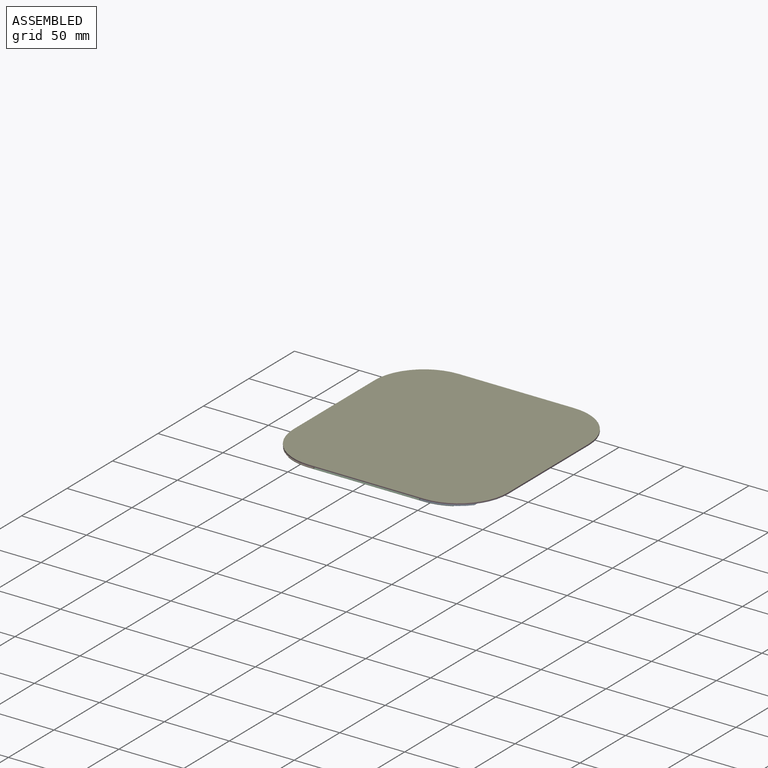
[diagram: assembled view]
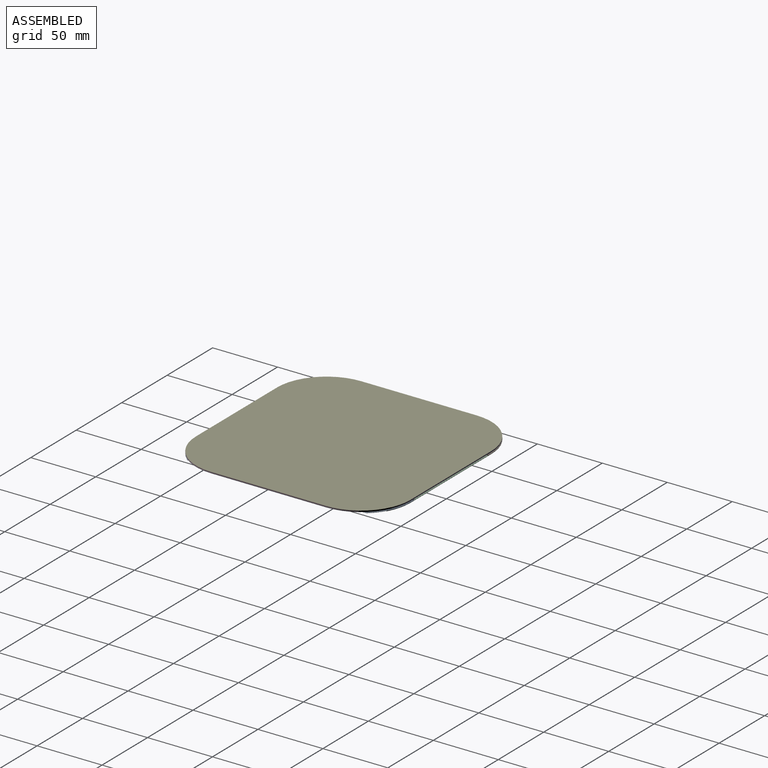
[diagram: assembled view, second angle]
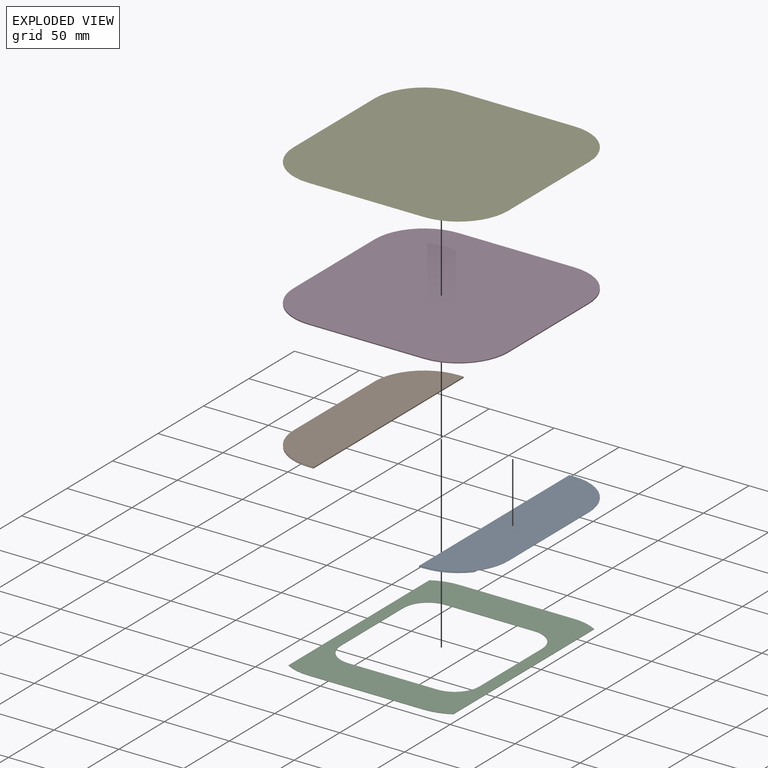
[diagram: exploded view]
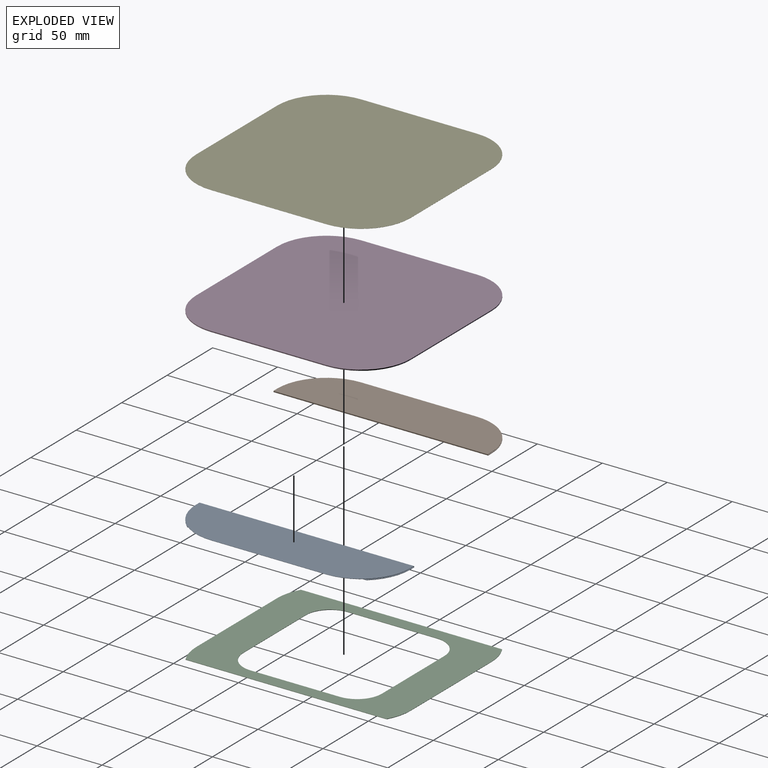
[diagram: exploded view, second angle]
ASSEMBLY  parts=5 mates=5
PART A: 16 faces, bbox 41.9x165.1x1 mm
  f0: plane 137.82x0.2mm, normal (-1,0,0), area 28mm2, adj f4,f5,f12,f13
  f1: plane 165.1x41.71mm, normal (0,0,1), area 6262.8mm2, adj f2,f9,f10,f11,f14,f15
  f2: plane 88.9x0.2mm, normal (-1,0,0), area 18.1mm2, adj f1,f3,f14,f15
  f3: plane 165.1x41.71mm, normal (0,0,-1), area 6262.8mm2, adj f2,f6,f9,f10,f14,f15
  f4: plane 165.1x32.82mm, normal (0,0,1), area 5175mm2, adj f0,f8,f9,f10,f12,f13
  f5: plane 165.1x32.82mm, normal (0,0,-1), area 5175mm2, adj f0,f9,f10,f11,f12,f13
  f6: cylinder r=0.2mm len=165.1mm, axis (0,1,0), area 52.7mm2, adj f3,f7,f9,f10
  f7: plane 165.1x0.61mm, normal (1,0,0), area 100.6mm2, adj f6,f8,f9,f10
  f8: cylinder r=0.2mm len=165.1mm, axis (0,1,0), area 52.7mm2, adj f4,f7,f9,f10
  f9: plane 3.81x1.02mm, normal (0,-1,0), area 1.7mm2, adj f1,f3,f4,f5,f6,f7,f8,f11
  f10: plane 3.81x1.02mm, normal (0,1,0), area 1.7mm2, adj f1,f3,f4,f5,f6,f7,f8,f11
  f11: plane 165.1x0.61mm, normal (-1,0,0), area 100.6mm2, adj f1,f5,f9,f10
  f12: cylinder r=38.1mm len=29.21mm, axis (0,0,1), area 6.8mm2, adj f0,f4,f5,f10
  f13: cylinder r=38.1mm len=29.21mm, axis (0,0,1), area 6.8mm2, adj f0,f4,f5,f9
  f14: cylinder r=38.1mm len=38.1mm, axis (0,0,1), area 12.2mm2, adj f1,f2,f3,f10
  f15: cylinder r=38.1mm len=38.1mm, axis (0,0,1), area 12.2mm2, adj f1,f2,f3,f9
PART B: same geometry as A
PART C: 18 faces, bbox 127x165.1x0.3 mm
  f0: plane 165.1x127mm, normal (0,0,1), area 9772.6mm2, adj f2,f3,f4,f5,f6,f7,f8,f9
  f1: plane 165.1x127mm, normal (0,0,-1), area 9772.6mm2, adj f2,f3,f4,f5,f6,f7,f8,f9
  f2: plane 88.9x0.25mm, normal (0,-1,0), area 22.6mm2, adj f0,f1,f7,f8
  f3: plane 154.89x0.25mm, normal (1,0,0), area 39.3mm2, adj f0,f1,f8,f9
  f4: plane 88.9x0.25mm, normal (0,1,0), area 22.6mm2, adj f0,f1,f6,f9
  f5: plane 154.89x0.25mm, normal (-1,0,0), area 39.3mm2, adj f0,f1,f6,f7
  f6: cylinder r=38.1mm len=19.05mm, axis (0,0,1), area 5.1mm2, adj f0,f1,f4,f5
  f7: cylinder r=38.1mm len=19.05mm, axis (0,0,1), area 5.1mm2, adj f0,f1,f2,f5
  f8: cylinder r=38.1mm len=19.05mm, axis (0,0,1), area 5.1mm2, adj f0,f1,f2,f3
  f9: cylinder r=38.1mm len=19.05mm, axis (0,0,1), area 5.1mm2, adj f0,f1,f3,f4
  f10: plane 68.58x0.25mm, normal (0,1,0), area 17.4mm2, adj f0,f1,f11,f17
  f11: cylinder r=19.05mm len=19.05mm, axis (0,0,1), area 7.6mm2, adj f0,f1,f10,f12
  f12: plane 68.58x0.25mm, normal (-1,0,0), area 17.4mm2, adj f0,f1,f11,f13
  f13: cylinder r=19.05mm len=19.05mm, axis (0,0,1), area 7.6mm2, adj f0,f1,f12,f14
  f14: plane 68.58x0.25mm, normal (0,-1,0), area 17.4mm2, adj f0,f1,f13,f15
  f15: cylinder r=19.05mm len=19.05mm, axis (0,0,1), area 7.6mm2, adj f0,f1,f14,f16
  f16: plane 68.58x0.25mm, normal (1,0,0), area 17.4mm2, adj f0,f1,f15,f17
  f17: cylinder r=19.05mm len=19.05mm, axis (0,0,1), area 7.6mm2, adj f0,f1,f10,f16
PART D: 10 faces, bbox 165.1x165.1x0.8 mm
  f0: plane 88.9x0.76mm, normal (1,0,0), area 67.7mm2, adj f1,f7,f8,f9
  f1: cylinder r=38.1mm len=38.1mm, axis (0,0,-1), area 45.6mm2, adj f0,f2,f8,f9
  f2: plane 88.9x0.76mm, normal (0,1,0), area 67.7mm2, adj f1,f3,f8,f9
  f3: cylinder r=38.1mm len=38.1mm, axis (0,0,-1), area 45.6mm2, adj f2,f4,f8,f9
  f4: plane 88.9x0.76mm, normal (-1,0,0), area 67.7mm2, adj f3,f5,f8,f9
  f5: cylinder r=38.1mm len=38.1mm, axis (0,0,-1), area 45.6mm2, adj f4,f6,f8,f9
  f6: plane 88.9x0.76mm, normal (0,-1,0), area 67.7mm2, adj f5,f7,f8,f9
  f7: cylinder r=38.1mm len=38.1mm, axis (0,0,-1), area 45.6mm2, adj f0,f6,f8,f9
  f8: plane 165.1x165.1mm, normal (0,0,1), area 26011.9mm2, adj f0,f1,f2,f3,f4,f5,f6,f7
  f9: plane 165.1x165.1mm, normal (0,0,-1), area 26011.9mm2, adj f0,f1,f2,f3,f4,f5,f6,f7
PART E: 10 faces, bbox 165.1x165.1x0.1 mm
  f0: plane 88.9x0.08mm, normal (-1,0,0), area 6.8mm2, adj f1,f7,f8,f9
  f1: cylinder r=38.1mm len=38.1mm, axis (0,0,-1), area 4.6mm2, adj f0,f2,f8,f9
  f2: plane 88.9x0.08mm, normal (0,-1,0), area 6.8mm2, adj f1,f3,f8,f9
  f3: cylinder r=38.1mm len=38.1mm, axis (0,0,-1), area 4.6mm2, adj f2,f4,f8,f9
  f4: plane 88.9x0.08mm, normal (1,0,0), area 6.8mm2, adj f3,f5,f8,f9
  f5: cylinder r=38.1mm len=38.1mm, axis (0,0,-1), area 4.6mm2, adj f4,f6,f8,f9
  f6: plane 88.9x0.08mm, normal (0,1,0), area 6.8mm2, adj f5,f7,f8,f9
  f7: cylinder r=38.1mm len=38.1mm, axis (0,0,-1), area 4.6mm2, adj f0,f6,f8,f9
  f8: plane 165.1x165.1mm, normal (0,0,1), area 26011.9mm2, adj f0,f1,f2,f3,f4,f5,f6,f7
  f9: plane 165.1x165.1mm, normal (0,0,-1), area 26011.9mm2, adj f0,f1,f2,f3,f4,f5,f6,f7
PLACE A rot(axis=(0,1,0),180deg) t=(-16.12,-15.17,-9.18)mm
PLACE B rot(axis=(-1,0,0),180deg) t=(-16.12,-15.17,-9.18)mm
PLACE C t=(-16.12,-15.17,-10.45)mm
PLACE D t=(-16.12,-15.17,-9.18)mm fixed
PLACE E rot(axis=(1,0,0),180deg) t=(-16.12,-15.17,-8.34)mm
MATE fastened E.f8 <-> D.f8  axis (0,0,-1) through (-16.12,-15.17,-8.42)mm
MATE planar B.f3 <-> D.f9  axis (0,0,1) through (-98.67,-15.17,-9.18)mm
MATE fastened A.f4 <-> C.f0  axis (0,0,-1) through (28.33,-97.72,-10.2)mm
MATE revolute D.f5 <-> B.f12  axis (0,0,-1) through (-60.57,-59.62,-9.18)mm
MATE fastened A.f4 <-> C.f0  axis (0,0,-1) through (28.33,67.38,-10.2)mm
